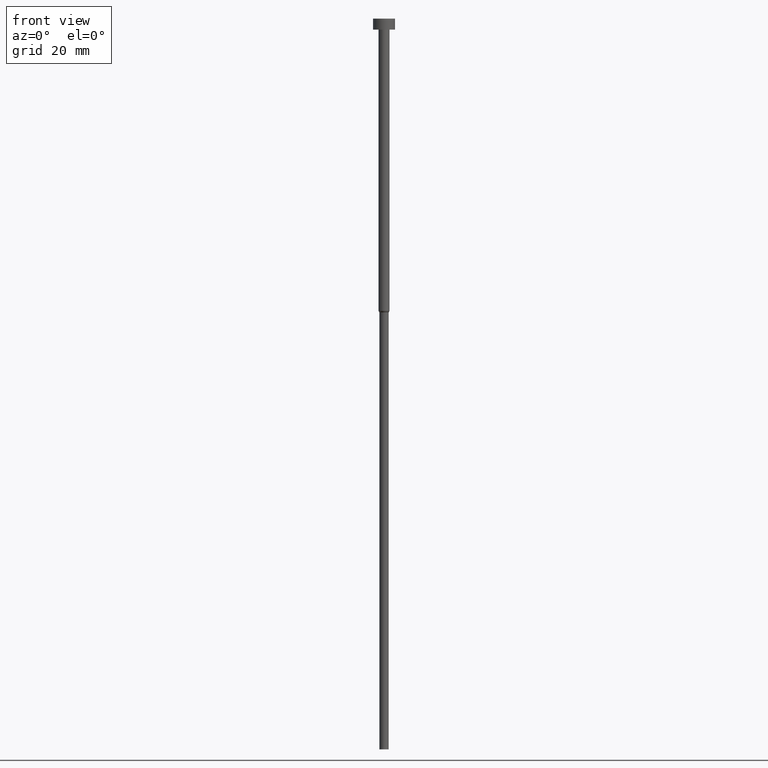
[diagram: clean part render]
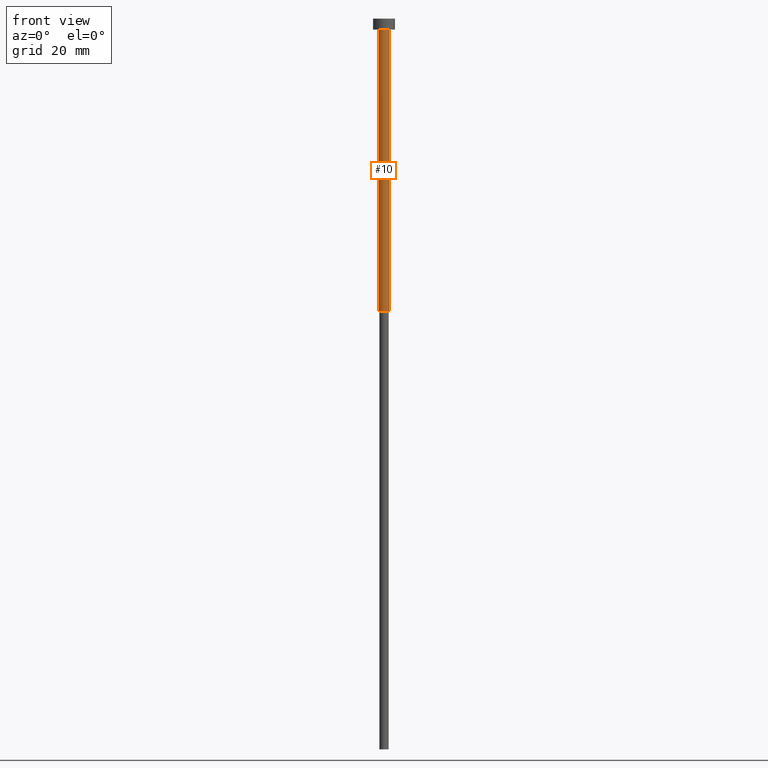
[diagram: same view with one face highlighted and labeled with its STEP entity id]
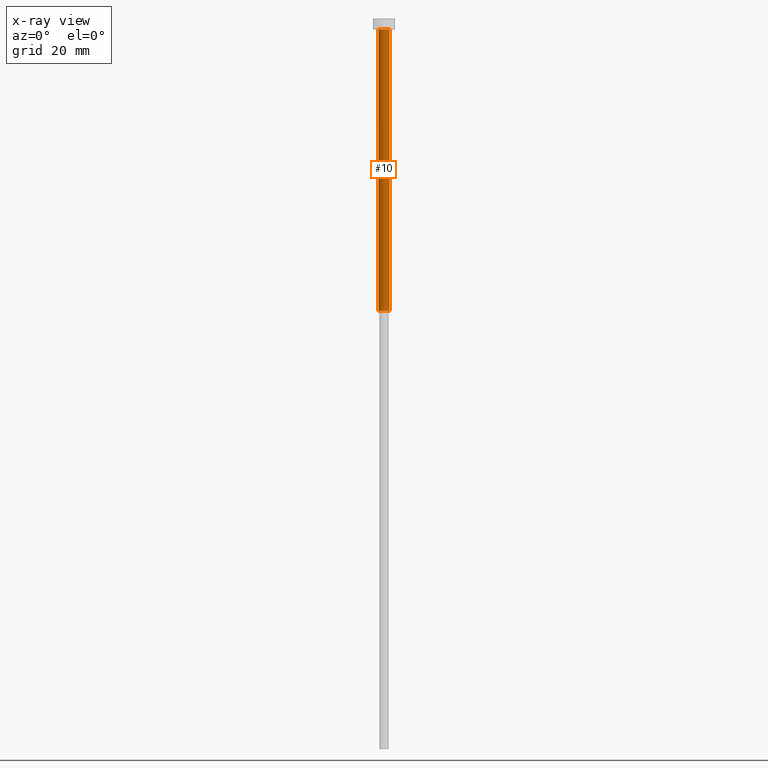
[diagram: x-ray of the same camera — body ghosted, the highlighted face saturated]
A machine part, front view. The second image highlights one B-rep face of the part: STEP entity #10.
The next image is the same camera in x-ray: the body ghosted, the highlighted face saturated — about 0% of this face is hidden behind the body in this view.
In plain terms, the highlighted cylindrical surface (edge-blend (fillet) strip) has radius 1.5 mm, axis along (-0, -0, 1).
Its self-contained STEP definition (entity closure, byte-faithful):
#1 = CARTESIAN_POINT ( 'NONE',  ( 1.500000000000000000, 0.000000000000000000, -3.000000000000000888 ) ) ;
#10 = ADVANCED_FACE ( 'NONE', ( #184 ), #182, .T. ) ;
#40 = ORIENTED_EDGE ( 'NONE', *, *, #64, .F. ) ;
#60 = VERTEX_POINT ( 'NONE', #150 ) ;
#62 = VERTEX_POINT ( 'NONE', #314 ) ;
#64 = EDGE_CURVE ( 'NONE', #255, #62, #260, .T. ) ;
#82 = DIRECTION ( 'NONE',  ( -0.000000000000000000, -0.000000000000000000, 1.000000000000000000 ) ) ;
#86 = EDGE_CURVE ( 'NONE', #255, #60, #307, .T. ) ;
#87 = VECTOR ( 'NONE', #82, 1000.000000000000000 ) ;
#102 = ORIENTED_EDGE ( 'NONE', *, *, #86, .T. ) ;
#110 = LINE ( 'NONE', #226, #87 ) ;
#120 = ORIENTED_EDGE ( 'NONE', *, *, #286, .T. ) ;
#123 = DIRECTION ( 'NONE',  ( 1.000000000000000000, 0.000000000000000000, 0.000000000000000000 ) ) ;
#125 = CARTESIAN_POINT ( 'NONE',  ( 0.000000000000000000, 0.000000000000000000, 0.000000000000000000 ) ) ;
#135 = AXIS2_PLACEMENT_3D ( 'NONE', #125, #291, #123 ) ;
#136 = DIRECTION ( 'NONE',  ( -0.000000000000000000, -0.000000000000000000, 1.000000000000000000 ) ) ;
#150 = CARTESIAN_POINT ( 'NONE',  ( 1.500000000000000000, 0.000000000000000000, -80.00000000000000000 ) ) ;
#179 = ORIENTED_EDGE ( 'NONE', *, *, #268, .F. ) ;
#181 = CARTESIAN_POINT ( 'NONE',  ( 0.000000000000000000, 0.000000000000000000, -80.00000000000000000 ) ) ;
#182 = CYLINDRICAL_SURFACE ( 'NONE', #135, 1.500000000000000000 ) ;
#184 = FACE_OUTER_BOUND ( 'NONE', #205, .T. ) ;
#203 = AXIS2_PLACEMENT_3D ( 'NONE', #300, #136, #250 ) ;
#205 = EDGE_LOOP ( 'NONE', ( #40, #102, #120, #179 ) ) ;
#222 = CARTESIAN_POINT ( 'NONE',  ( -1.500000000000000000, 1.836970198721029934E-16, -80.00000000000000000 ) ) ;
#226 = CARTESIAN_POINT ( 'NONE',  ( 1.500000000000000000, 0.000000000000000000, 0.000000000000000000 ) ) ;
#242 = VERTEX_POINT ( 'NONE', #1 ) ;
#246 = CARTESIAN_POINT ( 'NONE',  ( -1.500000000000000000, 1.836970198721029934E-16, 0.000000000000000000 ) ) ;
#250 = DIRECTION ( 'NONE',  ( 1.000000000000000000, 0.000000000000000000, 0.000000000000000000 ) ) ;
#255 = VERTEX_POINT ( 'NONE', #222 ) ;
#260 = LINE ( 'NONE', #246, #290 ) ;
#268 = EDGE_CURVE ( 'NONE', #62, #242, #317, .T. ) ;
#286 = EDGE_CURVE ( 'NONE', #60, #242, #110, .T. ) ;
#287 = DIRECTION ( 'NONE',  ( 1.000000000000000000, 0.000000000000000000, 0.000000000000000000 ) ) ;
#290 = VECTOR ( 'NONE', #343, 1000.000000000000000 ) ;
#291 = DIRECTION ( 'NONE',  ( -0.000000000000000000, -0.000000000000000000, 1.000000000000000000 ) ) ;
#300 = CARTESIAN_POINT ( 'NONE',  ( 0.000000000000000000, 0.000000000000000000, -3.000000000000000888 ) ) ;
#307 = CIRCLE ( 'NONE', #331, 1.500000000000000000 ) ;
#314 = CARTESIAN_POINT ( 'NONE',  ( -1.500000000000000000, 1.836970198721029934E-16, -3.000000000000000888 ) ) ;
#317 = CIRCLE ( 'NONE', #203, 1.500000000000000000 ) ;
#331 = AXIS2_PLACEMENT_3D ( 'NONE', #181, #351, #287 ) ;
#343 = DIRECTION ( 'NONE',  ( -0.000000000000000000, -0.000000000000000000, 1.000000000000000000 ) ) ;
#351 = DIRECTION ( 'NONE',  ( -0.000000000000000000, -0.000000000000000000, 1.000000000000000000 ) ) ;